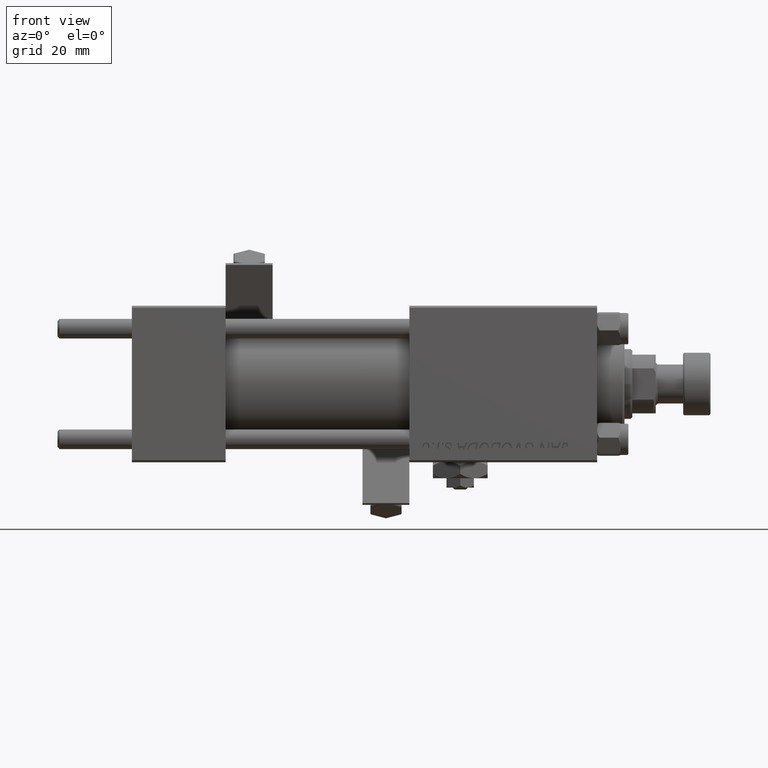
[diagram: clean part render]
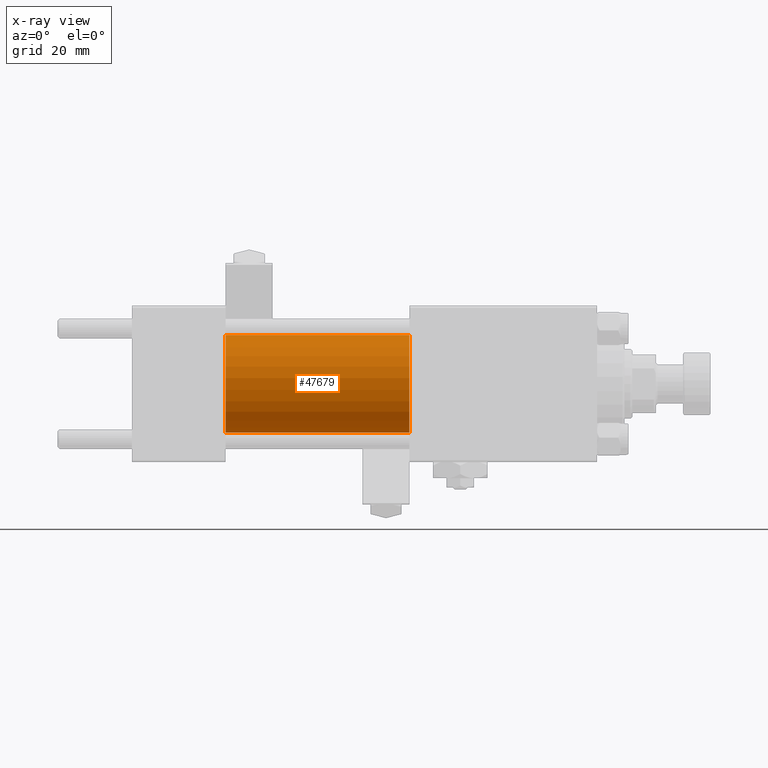
[diagram: x-ray — body ghosted, one internal face saturated and labeled with its STEP entity id]
A machine part, front view, then the same camera in x-ray: the body is ghosted and one INTERNAL B-rep face — a face not visible from any outside direction — is saturated and labeled: STEP entity #47679.
In plain terms, the highlighted cylindrical surface (partial cylindrical patch) has radius 12.5 mm, axis along (-1, -0, -0).
Its self-contained STEP definition (entity closure, byte-faithful):
#528 = CARTESIAN_POINT ( 'NONE',  ( 71.00000000000001421, 0.000000000000000000, 12.49999999999999645 ) ) ;
#1006 = CARTESIAN_POINT ( 'NONE',  ( 71.00000000000001421, 0.000000000000000000, 0.000000000000000000 ) ) ;
#1115 = VERTEX_POINT ( 'NONE', #7891 ) ;
#2374 = DIRECTION ( 'NONE',  ( 1.000000000000000000, 0.000000000000000000, 0.000000000000000000 ) ) ;
#4347 = VECTOR ( 'NONE', #20814, 1000.000000000000000 ) ;
#4423 = CARTESIAN_POINT ( 'NONE',  ( 71.00000000000001421, 1.530808498934191127E-15, -12.49999999999999645 ) ) ;
#6624 = DIRECTION ( 'NONE',  ( 0.000000000000000000, 0.000000000000000000, 1.000000000000000000 ) ) ;
#6627 = CIRCLE ( 'NONE', #14414, 12.49999999999999645 ) ;
#7891 = CARTESIAN_POINT ( 'NONE',  ( 71.00000000000001421, 0.000000000000000000, 12.49999999999999645 ) ) ;
#10957 = DIRECTION ( 'NONE',  ( 0.000000000000000000, 0.000000000000000000, -1.000000000000000000 ) ) ;
#10992 = CARTESIAN_POINT ( 'NONE',  ( 71.00000000000001421, 0.000000000000000000, 0.000000000000000000 ) ) ;
#11410 = CARTESIAN_POINT ( 'NONE',  ( 71.00000000000001421, 1.530808498934191127E-15, -12.49999999999999645 ) ) ;
#13619 = CARTESIAN_POINT ( 'NONE',  ( 24.00000000000000000, 1.530808498934191127E-15, -12.49999999999999645 ) ) ;
#14414 = AXIS2_PLACEMENT_3D ( 'NONE', #10992, #15028, #43473 ) ;
#14678 = AXIS2_PLACEMENT_3D ( 'NONE', #1006, #33489, #6624 ) ;
#15028 = DIRECTION ( 'NONE',  ( 1.000000000000000000, 0.000000000000000000, 0.000000000000000000 ) ) ;
#16384 = LINE ( 'NONE', #528, #52035 ) ;
#16862 = FACE_OUTER_BOUND ( 'NONE', #28129, .T. ) ;
#17118 = CYLINDRICAL_SURFACE ( 'NONE', #14678, 12.49999999999999645 ) ;
#19317 = LINE ( 'NONE', #4423, #4347 ) ;
#20814 = DIRECTION ( 'NONE',  ( -1.000000000000000000, -0.000000000000000000, -0.000000000000000000 ) ) ;
#22000 = CIRCLE ( 'NONE', #48561, 12.49999999999999645 ) ;
#26596 = CARTESIAN_POINT ( 'NONE',  ( 24.00000000000000000, 0.000000000000000000, 12.49999999999999645 ) ) ;
#27082 = CARTESIAN_POINT ( 'NONE',  ( 24.00000000000000000, 0.000000000000000000, 0.000000000000000000 ) ) ;
#28129 = EDGE_LOOP ( 'NONE', ( #31306, #43821, #32771, #37073 ) ) ;
#28365 = VERTEX_POINT ( 'NONE', #13619 ) ;
#31306 = ORIENTED_EDGE ( 'NONE', *, *, #39692, .T. ) ;
#32771 = ORIENTED_EDGE ( 'NONE', *, *, #37253, .F. ) ;
#33489 = DIRECTION ( 'NONE',  ( -1.000000000000000000, -0.000000000000000000, -0.000000000000000000 ) ) ;
#37073 = ORIENTED_EDGE ( 'NONE', *, *, #38107, .F. ) ;
#37253 = EDGE_CURVE ( 'NONE', #49478, #28365, #22000, .T. ) ;
#38107 = EDGE_CURVE ( 'NONE', #1115, #49478, #16384, .T. ) ;
#39692 = EDGE_CURVE ( 'NONE', #1115, #45850, #6627, .T. ) ;
#43473 = DIRECTION ( 'NONE',  ( 0.000000000000000000, 0.000000000000000000, -1.000000000000000000 ) ) ;
#43821 = ORIENTED_EDGE ( 'NONE', *, *, #50764, .T. ) ;
#44821 = DIRECTION ( 'NONE',  ( -1.000000000000000000, -0.000000000000000000, -0.000000000000000000 ) ) ;
#45850 = VERTEX_POINT ( 'NONE', #11410 ) ;
#47679 = ADVANCED_FACE ( 'NONE', ( #16862 ), #17118, .F. ) ;
#48561 = AXIS2_PLACEMENT_3D ( 'NONE', #27082, #2374, #10957 ) ;
#49478 = VERTEX_POINT ( 'NONE', #26596 ) ;
#50764 = EDGE_CURVE ( 'NONE', #45850, #28365, #19317, .T. ) ;
#52035 = VECTOR ( 'NONE', #44821, 1000.000000000000000 ) ;